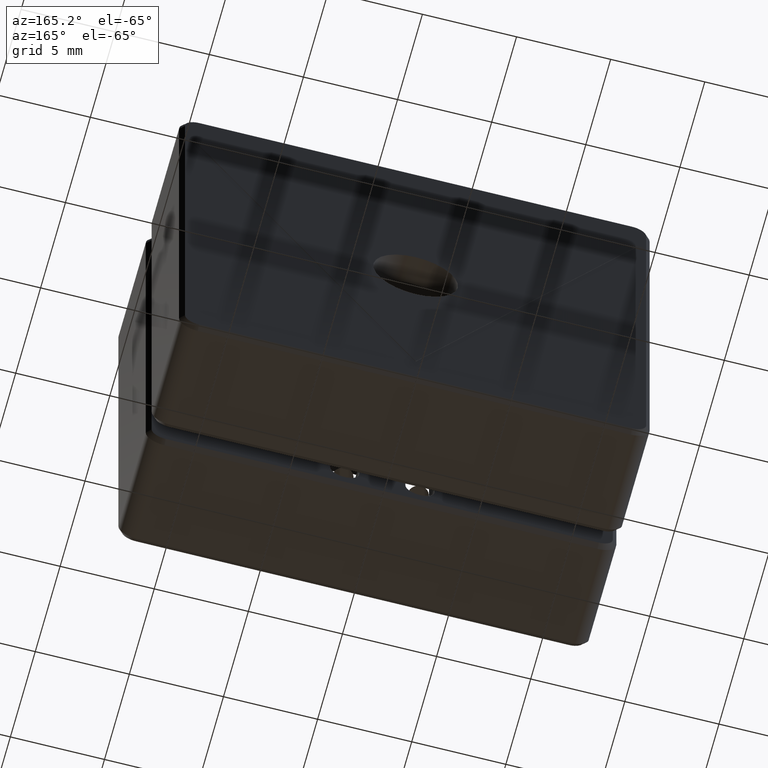
[diagram: clean part render]
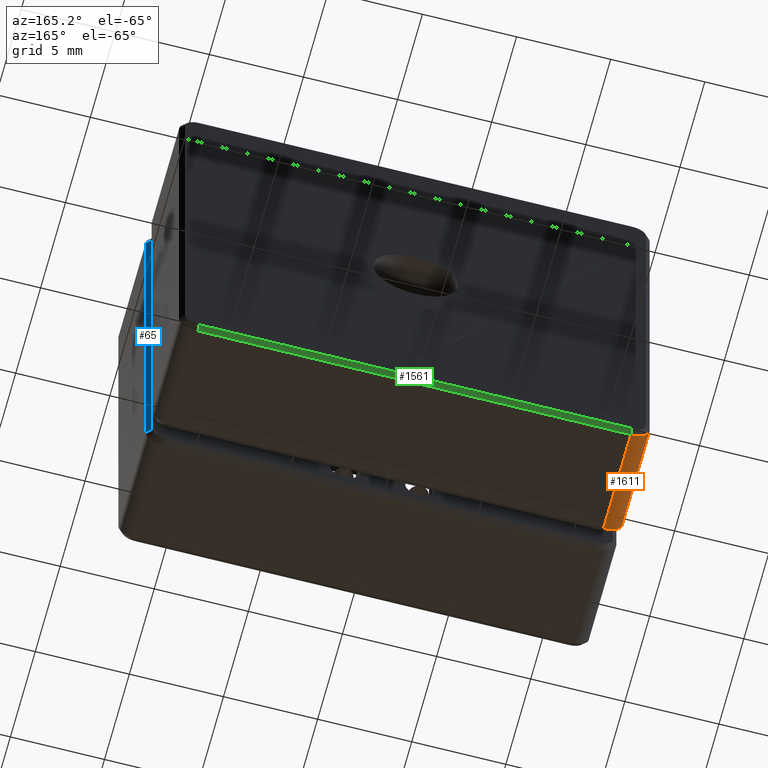
[diagram: same view with three faces highlighted in distinct colors, each labeled with its STEP entity id]
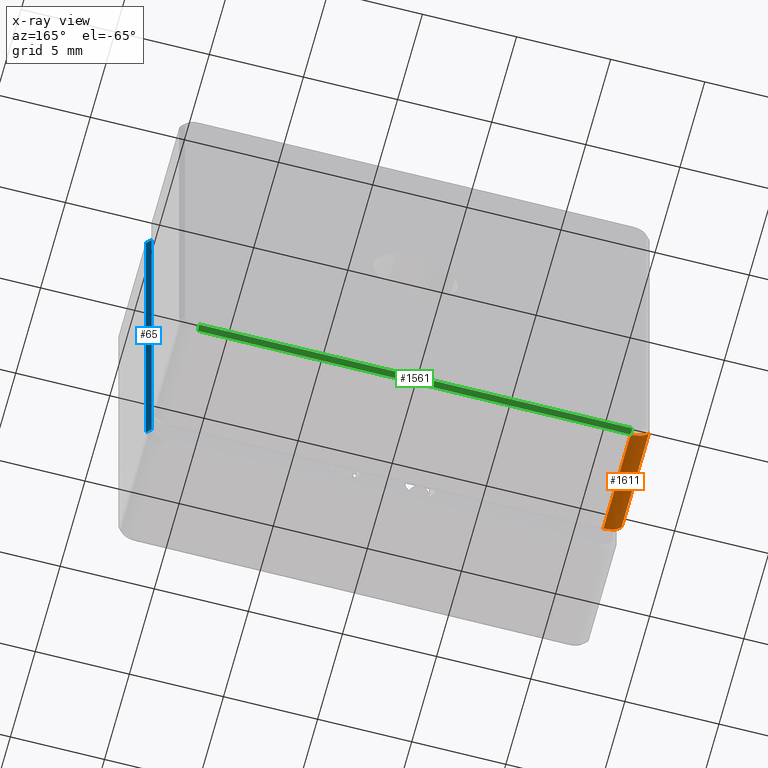
[diagram: x-ray of the same camera — body ghosted, the three highlighted faces saturated]
A machine part, auxiliary view with three faces highlighted in distinct colors.
The next image is the same camera in x-ray (body ghosted, the three faces saturated) — at least one of them is partly hidden behind the body in this view.
Their STEP definitions:

[orange] entity #1611 — the highlighted cylindrical surface (edge-blend (fillet) strip) has radius 1 mm, axis along (0, 1, -0).
#195 = DIRECTION ( 'NONE',  ( -6.706162754953253845E-19, -1.000000000000000000, 7.904105642296815770E-20 ) ) ;
#326 = CYLINDRICAL_SURFACE ( 'NONE', #1786, 0.9999999999999991118 ) ;
#333 = VECTOR ( 'NONE', #195, 1000.000000000000000 ) ;
#371 = FACE_OUTER_BOUND ( 'NONE', #2837, .T. ) ;
#407 = DIRECTION ( 'NONE',  ( 0.0000000000000000000, 0.0000000000000000000, 1.000000000000000000 ) ) ;
#458 = LINE ( 'NONE', #3351, #333 ) ;
#486 = EDGE_CURVE ( 'NONE', #497, #3261, #458, .T. ) ;
#497 = VERTEX_POINT ( 'NONE', #2030 ) ;
#586 = VERTEX_POINT ( 'NONE', #1867 ) ;
#835 = CARTESIAN_POINT ( 'NONE',  ( -12.49999999999999645, 3.949958608817680350, -11.50000000000000888 ) ) ;
#1035 = EDGE_CURVE ( 'NONE', #497, #1549, #1283, .T. ) ;
#1050 = CARTESIAN_POINT ( 'NONE',  ( -11.49999999999999645, 3.699958608817687455, -12.50000000000000711 ) ) ;
#1151 = EDGE_CURVE ( 'NONE', #586, #3261, #1243, .T. ) ;
#1243 = CIRCLE ( 'NONE', #1540, 0.9999999999999991118 ) ;
#1283 = CIRCLE ( 'NONE', #1841, 0.9999999999999991118 ) ;
#1290 = DIRECTION ( 'NONE',  ( 6.706162754953253845E-19, 1.000000000000000000, -7.904105642296815770E-20 ) ) ;
#1305 = VECTOR ( 'NONE', #3118, 1000.000000000000000 ) ;
#1474 = ORIENTED_EDGE ( 'NONE', *, *, #1151, .T. ) ;
#1540 = AXIS2_PLACEMENT_3D ( 'NONE', #3133, #1290, #1582 ) ;
#1543 = ORIENTED_EDGE ( 'NONE', *, *, #2640, .F. ) ;
#1549 = VERTEX_POINT ( 'NONE', #3340 ) ;
#1582 = DIRECTION ( 'NONE',  ( 1.734723475976808672E-15, 0.0000000000000000000, 1.000000000000000000 ) ) ;
#1611 = ADVANCED_FACE ( 'NONE', ( #371 ), #326, .T. ) ;
#1753 = ORIENTED_EDGE ( 'NONE', *, *, #1035, .T. ) ;
#1786 = AXIS2_PLACEMENT_3D ( 'NONE', #2319, #2589, #2364 ) ;
#1841 = AXIS2_PLACEMENT_3D ( 'NONE', #2785, #2808, #407 ) ;
#1867 = CARTESIAN_POINT ( 'NONE',  ( -11.49999999999999645, 3.949958608817680350, -12.50000000000000711 ) ) ;
#2030 = CARTESIAN_POINT ( 'NONE',  ( -12.49999999999999645, 9.449958608817592420, -11.50000000000000888 ) ) ;
#2092 = ORIENTED_EDGE ( 'NONE', *, *, #486, .F. ) ;
#2306 = LINE ( 'NONE', #1050, #1305 ) ;
#2319 = CARTESIAN_POINT ( 'NONE',  ( -11.49999999999999645, 3.699958608817687455, -11.50000000000000888 ) ) ;
#2364 = DIRECTION ( 'NONE',  ( 0.0000000000000000000, 0.0000000000000000000, -1.000000000000000000 ) ) ;
#2589 = DIRECTION ( 'NONE',  ( 6.706162754953253845E-19, 1.000000000000000000, -7.904105642296815770E-20 ) ) ;
#2640 = EDGE_CURVE ( 'NONE', #586, #1549, #2306, .T. ) ;
#2785 = CARTESIAN_POINT ( 'NONE',  ( -11.49999999999999645, 9.449958608817592420, -11.50000000000000888 ) ) ;
#2808 = DIRECTION ( 'NONE',  ( -6.706162754953253845E-19, -1.000000000000000000, 7.904105642296815770E-20 ) ) ;
#2837 = EDGE_LOOP ( 'NONE', ( #2092, #1753, #1543, #1474 ) ) ;
#3118 = DIRECTION ( 'NONE',  ( 6.706162754953253845E-19, 1.000000000000000000, -7.904105642296815770E-20 ) ) ;
#3133 = CARTESIAN_POINT ( 'NONE',  ( -11.49999999999999645, 3.949958608817680350, -11.50000000000000888 ) ) ;
#3261 = VERTEX_POINT ( 'NONE', #835 ) ;
#3340 = CARTESIAN_POINT ( 'NONE',  ( -11.49999999999999645, 9.449958608817592420, -12.50000000000000711 ) ) ;
#3351 = CARTESIAN_POINT ( 'NONE',  ( -12.49999999999999645, 3.699958608817687455, -11.50000000000000888 ) ) ;

[blue] entity #65 — the highlighted planar face has unit normal (0.7071, 0.7071, -0).
#25 = CARTESIAN_POINT ( 'NONE',  ( 12.50000000000000711, 2.750000000000000000, 11.50000000000000178 ) ) ;
#65 = ADVANCED_FACE ( 'NONE', ( #564 ), #1894, .T. ) ;
#113 = LINE ( 'NONE', #940, #3382 ) ;
#121 = CARTESIAN_POINT ( 'NONE',  ( 12.50000000000000355, 2.750000000000000000, -11.50000000000000000 ) ) ;
#130 = LINE ( 'NONE', #3088, #2865 ) ;
#218 = ORIENTED_EDGE ( 'NONE', *, *, #3322, .F. ) ;
#266 = DIRECTION ( 'NONE',  ( 0.7071067811865475727, 0.7071067811865475727, -9.813077866773593251E-17 ) ) ;
#276 = CARTESIAN_POINT ( 'NONE',  ( 12.25000000000000533, 3.000000000000000000, -1.700029006457271544E-15 ) ) ;
#320 = CARTESIAN_POINT ( 'NONE',  ( 12.25000000000000711, 3.000000000000000000, 11.50000000000000178 ) ) ;
#346 = VERTEX_POINT ( 'NONE', #121 ) ;
#426 = DIRECTION ( 'NONE',  ( -0.7071067811865474617, 0.7071067811865474617, 0.0000000000000000000 ) ) ;
#457 = EDGE_CURVE ( 'NONE', #346, #2178, #130, .T. ) ;
#564 = FACE_OUTER_BOUND ( 'NONE', #2369, .T. ) ;
#839 = DIRECTION ( 'NONE',  ( 1.387778780781445429E-16, -0.0000000000000000000, 1.000000000000000000 ) ) ;
#940 = CARTESIAN_POINT ( 'NONE',  ( 12.50000000000000711, 2.750000000000000000, 11.50000000000000178 ) ) ;
#1013 = ORIENTED_EDGE ( 'NONE', *, *, #457, .T. ) ;
#1157 = ORIENTED_EDGE ( 'NONE', *, *, #2413, .F. ) ;
#1353 = VECTOR ( 'NONE', #3273, 1000.000000000000000 ) ;
#1398 = VERTEX_POINT ( 'NONE', #320 ) ;
#1522 = DIRECTION ( 'NONE',  ( 1.387778780781445429E-16, 0.0000000000000000000, 1.000000000000000000 ) ) ;
#1889 = CARTESIAN_POINT ( 'NONE',  ( 12.50000000000000711, 2.750000000000000000, 11.50000000000000178 ) ) ;
#1894 = PLANE ( 'NONE',  #2007 ) ;
#1961 = EDGE_CURVE ( 'NONE', #2700, #1398, #3188, .T. ) ;
#2007 = AXIS2_PLACEMENT_3D ( 'NONE', #276, #266, #839 ) ;
#2178 = VERTEX_POINT ( 'NONE', #3419 ) ;
#2190 = CARTESIAN_POINT ( 'NONE',  ( 12.25000000000000355, 3.000000000000000000, -11.50000000000000000 ) ) ;
#2262 = LINE ( 'NONE', #2190, #1353 ) ;
#2350 = DIRECTION ( 'NONE',  ( -0.7071067811865474617, 0.7071067811865474617, 0.0000000000000000000 ) ) ;
#2369 = EDGE_LOOP ( 'NONE', ( #1013, #218, #2517, #1157 ) ) ;
#2413 = EDGE_CURVE ( 'NONE', #346, #2700, #113, .T. ) ;
#2517 = ORIENTED_EDGE ( 'NONE', *, *, #1961, .F. ) ;
#2569 = VECTOR ( 'NONE', #2350, 1000.000000000000114 ) ;
#2700 = VERTEX_POINT ( 'NONE', #25 ) ;
#2865 = VECTOR ( 'NONE', #426, 1000.000000000000114 ) ;
#3088 = CARTESIAN_POINT ( 'NONE',  ( 12.50000000000000355, 2.750000000000000000, -11.50000000000000000 ) ) ;
#3188 = LINE ( 'NONE', #1889, #2569 ) ;
#3273 = DIRECTION ( 'NONE',  ( -1.387778780781445429E-16, 0.0000000000000000000, -1.000000000000000000 ) ) ;
#3322 = EDGE_CURVE ( 'NONE', #1398, #2178, #2262, .T. ) ;
#3382 = VECTOR ( 'NONE', #1522, 1000.000000000000000 ) ;
#3419 = CARTESIAN_POINT ( 'NONE',  ( 12.25000000000000355, 3.000000000000000000, -11.50000000000000000 ) ) ;

[green] entity #1561 — the highlighted planar face has unit normal (0, -0.7071, 0.7071).
#38 = LINE ( 'NONE', #534, #2519 ) ;
#214 = ORIENTED_EDGE ( 'NONE', *, *, #3107, .F. ) ;
#226 = VERTEX_POINT ( 'NONE', #2999 ) ;
#285 = LINE ( 'NONE', #3095, #3357 ) ;
#418 = FACE_OUTER_BOUND ( 'NONE', #2901, .T. ) ;
#447 = CARTESIAN_POINT ( 'NONE',  ( 12.50000000000000355, 9.449958608817592420, -12.50000000000001421 ) ) ;
#534 = CARTESIAN_POINT ( 'NONE',  ( 4.473913854002755427E-15, 9.699958608817594197, -12.25000000000001066 ) ) ;
#588 = CARTESIAN_POINT ( 'NONE',  ( -11.49999999999999645, 9.699958608817594197, -12.25000000000000888 ) ) ;
#883 = DIRECTION ( 'NONE',  ( 3.170226231902606317E-16, 0.7071067811865420216, 0.7071067811865530128 ) ) ;
#1042 = EDGE_CURVE ( 'NONE', #1549, #226, #285, .T. ) ;
#1144 = LINE ( 'NONE', #3040, #2039 ) ;
#1167 = CARTESIAN_POINT ( 'NONE',  ( 11.50000000000000355, 9.449958608817592420, -12.50000000000001421 ) ) ;
#1223 = DIRECTION ( 'NONE',  ( 1.000000000000000000, -6.706162754953168141E-19, -1.041918287758569761E-16 ) ) ;
#1337 = VERTEX_POINT ( 'NONE', #588 ) ;
#1457 = EDGE_CURVE ( 'NONE', #1549, #1337, #1144, .T. ) ;
#1549 = VERTEX_POINT ( 'NONE', #3340 ) ;
#1561 = ADVANCED_FACE ( 'NONE', ( #418 ), #2284, .F. ) ;
#2039 = VECTOR ( 'NONE', #3299, 1000.000000000000000 ) ;
#2244 = DIRECTION ( 'NONE',  ( 1.000000000000000000, -6.706162754953168141E-19, -1.041918287758569761E-16 ) ) ;
#2284 = PLANE ( 'NONE',  #2727 ) ;
#2292 = ORIENTED_EDGE ( 'NONE', *, *, #1042, .F. ) ;
#2297 = DIRECTION ( 'NONE',  ( 7.320055135565989219E-17, -0.7071067811865420216, 0.7071067811865530128 ) ) ;
#2519 = VECTOR ( 'NONE', #3393, 1000.000000000000000 ) ;
#2633 = CARTESIAN_POINT ( 'NONE',  ( 11.50000000000000355, 9.699958608817594197, -12.25000000000001421 ) ) ;
#2727 = AXIS2_PLACEMENT_3D ( 'NONE', #447, #2297, #1223 ) ;
#2877 = ORIENTED_EDGE ( 'NONE', *, *, #1457, .T. ) ;
#2901 = EDGE_LOOP ( 'NONE', ( #2877, #214, #2964, #2292 ) ) ;
#2964 = ORIENTED_EDGE ( 'NONE', *, *, #3331, .F. ) ;
#2999 = CARTESIAN_POINT ( 'NONE',  ( 11.50000000000000355, 9.449958608817592420, -12.50000000000001421 ) ) ;
#3040 = CARTESIAN_POINT ( 'NONE',  ( -11.49999999999999645, 9.449958608817592420, -12.50000000000000711 ) ) ;
#3058 = VECTOR ( 'NONE', #883, 1000.000000000000114 ) ;
#3095 = CARTESIAN_POINT ( 'NONE',  ( 12.50000000000000355, 9.449958608817592420, -12.50000000000001421 ) ) ;
#3107 = EDGE_CURVE ( 'NONE', #3205, #1337, #38, .T. ) ;
#3205 = VERTEX_POINT ( 'NONE', #2633 ) ;
#3224 = LINE ( 'NONE', #1167, #3058 ) ;
#3299 = DIRECTION ( 'NONE',  ( 3.170226231902599908E-16, 0.7071067811865444641, 0.7071067811865505703 ) ) ;
#3331 = EDGE_CURVE ( 'NONE', #226, #3205, #3224, .T. ) ;
#3340 = CARTESIAN_POINT ( 'NONE',  ( -11.49999999999999645, 9.449958608817592420, -12.50000000000000711 ) ) ;
#3357 = VECTOR ( 'NONE', #2244, 1000.000000000000000 ) ;
#3393 = DIRECTION ( 'NONE',  ( -1.000000000000000000, 6.706162754953168141E-19, 1.041918287758569761E-16 ) ) ;